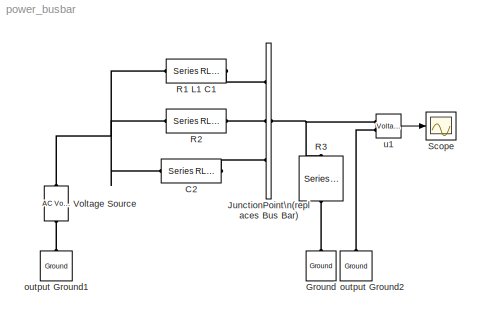
MODEL power_busbar
KIND model
BLOCK [Reference] C2  REF=powerlib/Elements/Series RLC Branch
  AttributesFormatString = \\n
  Capacitance = 1
  Inductance = 0
  LConnTagsString = __new0
  Measurements = None
  PhysicalDomain = powersysdomain
  PortType = p1
  Ports = [0, 0, 0, 0, 0, 1, 1]
  RConnTagsString = __new0
  Resistance = 0
  SourceBlock = powerlib/Elements/Series RLC Branch
  SourceType = Series RLC Branch
  SubClassName = unknown
BLOCK [Reference] Ground  REF=powerlib/Elements/Ground
  AttributesFormatString = \\n
  LConnTagsString = a
  PhysicalDomain = powersysdomain
  PortType = p1
  Ports = [0, 0, 0, 0, 0, 1]
  SourceBlock = powerlib/Elements/Ground
  SourceType = Ground
  SubClassName = unknown
BLOCK [PMComponent] JunctionPoint\n(replaces Bus Bar) 
  LConnTagsString = I1|I2|I3
  LeftPortType = p1
  MaskCallbackString = |
  MaskDescription = This block is used  to replace the Bus Bar block from powerlib2. This block was generated by the psbupdate function. With SimPowerSystems, this block is not required. You should considere deleting this block and reconnect the lines together.
  MaskDisplay = color('red');\n\nplot([0,100],[0,100])\n\nplot([0,100],[100,0])\n\n
  MaskEnableString = on,on
  MaskIconFrame = on
  MaskIconOpaque = on
  MaskIconRotate = port
  MaskIconUnits = autoscale
  MaskInitialization = inputtags = cell(1,entrees);\n\nfor i=1:entrees\n\n	inputtags{i} = ['I',num2str(i)];\n\nend\n\noutputtags = cell(1,sorties);\n\nfor i=1:sorties\n\n	outputtags{i} = ['O',num2str(i)];\n\nend\n\nset_param(gcbh,'LConnTags',inputtags);\n\nset_param(gcbh,'RConnTags',outputtags);
  MaskPromptString = inputs|outputs
  MaskSelfModifiable = on
  MaskStyleString = edit,edit
  MaskTabNameString = ,
  MaskToolTipString = on,on
  MaskTunableValueString = on,on
  MaskType = JunctionPoint
  MaskValueString = 3|1
  MaskVarAliasString = ,
  MaskVariables = entrees=@1;sorties=@2;
  MaskVisibilityString = off,off
  PhysicalDomain = powersysdomain
  Ports = [0, 0, 0, 0, 0, 3, 1]
  RConnTagsString = O1
  RightPortType = p1
  Tag = PoWeRsYsTeMbLoCk
BLOCK [Reference] R1 L1 C1  REF=powerlib/Elements/Series RLC Branch
  AttributesFormatString = \\n
  Capacitance = 1e-06
  Inductance = 1e-03
  LConnTagsString = __new0
  Measurements = None
  PhysicalDomain = powersysdomain
  PortType = p1
  Ports = [0, 0, 0, 0, 0, 1, 1]
  RConnTagsString = __new0
  Resistance = 1
  SourceBlock = powerlib/Elements/Series RLC Branch
  SourceType = Series RLC Branch
  SubClassName = unknown
BLOCK [Reference] R2  REF=powerlib/Elements/Series RLC Branch
  AttributesFormatString = \\n
  Capacitance = inf
  Inductance = 0
  LConnTagsString = __new0
  Measurements = None
  PhysicalDomain = powersysdomain
  PortType = p1
  Ports = [0, 0, 0, 0, 0, 1, 1]
  RConnTagsString = __new0
  Resistance = 1
  SourceBlock = powerlib/Elements/Series RLC Branch
  SourceType = Series RLC Branch
  SubClassName = unknown
BLOCK [Reference] R3  REF=powerlib/Elements/Series RLC Branch
  AttributesFormatString = \\n
  Capacitance = inf
  Inductance = 0
  LConnTagsString = __new0
  Measurements = None
  PhysicalDomain = powersysdomain
  PortType = p1
  Ports = [0, 0, 0, 0, 0, 1, 1]
  RConnTagsString = __new0
  Resistance = 1
  SourceBlock = powerlib/Elements/Series RLC Branch
  SourceType = Series RLC Branch
  SubClassName = unknown
BLOCK [Scope] Scope
  DataFormat = Array
  NumInputPorts = 1
  Ports = [1]
  TickLabels = on
  TimeRange = 0.1
  YMax = 50
  YMin = -50
BLOCK [Reference] Voltage Source  REF=powerlib/Electrical\nSources/AC Voltage Source
  Amplitude = 50
  AttributesFormatString = \\n
  Description = source block
  Frequency = 60
  Measurements = None
  Phase = 0
  Ports = [0, 0, 0, 0, 0, 1, 1]
  SampleTime = 0
  SourceBlock = powerlib/Electrical\nSources/AC Voltage Source
  SourceType = AC Voltage Source
BLOCK [Reference] output Ground1  REF=powerlib/Elements/Ground
  AttributesFormatString = \\n
  LConnTagsString = a
  PhysicalDomain = powersysdomain
  PortType = p1
  Ports = [0, 0, 0, 0, 0, 1]
  SourceBlock = powerlib/Elements/Ground
  SourceType = Ground
  SubClassName = unknown
BLOCK [Reference] output Ground2  REF=powerlib/Elements/Ground
  AttributesFormatString = \\n
  LConnTagsString = a
  PhysicalDomain = powersysdomain
  PortType = p1
  Ports = [0, 0, 0, 0, 0, 1]
  SourceBlock = powerlib/Elements/Ground
  SourceType = Ground
  SubClassName = unknown
BLOCK [Reference] u1  REF=powerlib/Measurements/Voltage Measurement
  AttributesFormatString = \\n
  OutputType = Magnitude
  PSBequivalent = 0
  PhasorSimulation = off
  Ports = [0, 1, 0, 0, 0, 2]
  SourceBlock = powerlib/Measurements/Voltage Measurement
  SourceType = Voltage Measurement
  Tag = PoWeRsYsTeMmEaSuReMeNt
LINE u1:1 -> Scope:1
PNET net1: C2:LConn1 -- R1 L1 C1:LConn1 -- R2:LConn1 -- Voltage Source:RConn1
PLINE C2:RConn1 -- JunctionPoint\n(replaces Bus Bar) :LConn3
PLINE Ground:LConn1 -- R3:RConn1
PLINE JunctionPoint\n(replaces Bus Bar) :LConn1 -- R1 L1 C1:RConn1
PLINE JunctionPoint\n(replaces Bus Bar) :LConn2 -- R2:RConn1
PNET net2: JunctionPoint\n(replaces Bus Bar) :RConn1 -- R3:LConn1 -- u1:LConn1
PLINE Voltage Source:LConn1 -- output Ground1:LConn1
PLINE output Ground2:LConn1 -- u1:LConn2
note: PNET lines group multi-terminal physical nets as a canonical sorted terminal list (undirected conserving connections); 2-terminal nets keep the pairwise PLINE form
